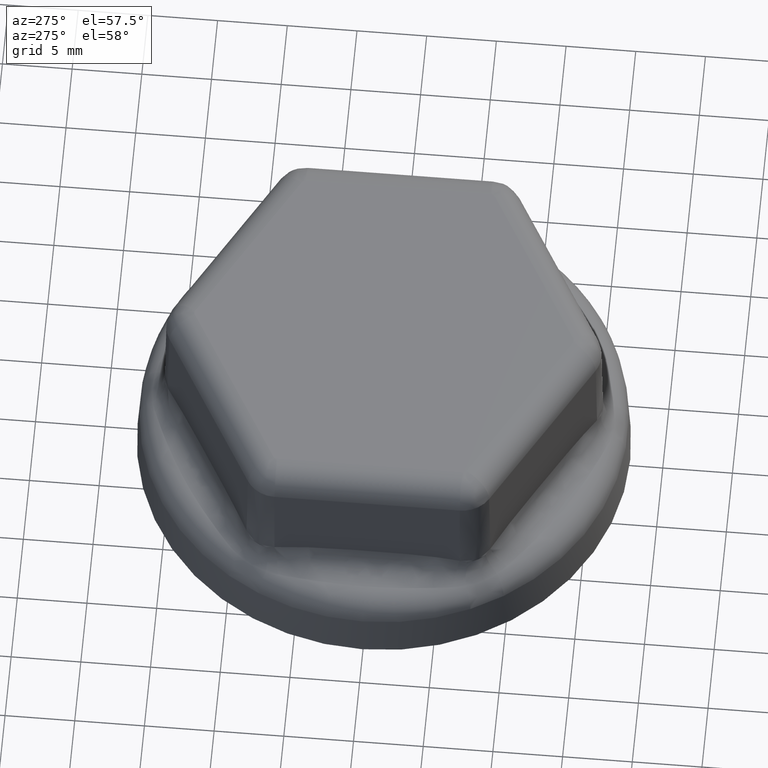
[diagram: clean part render]
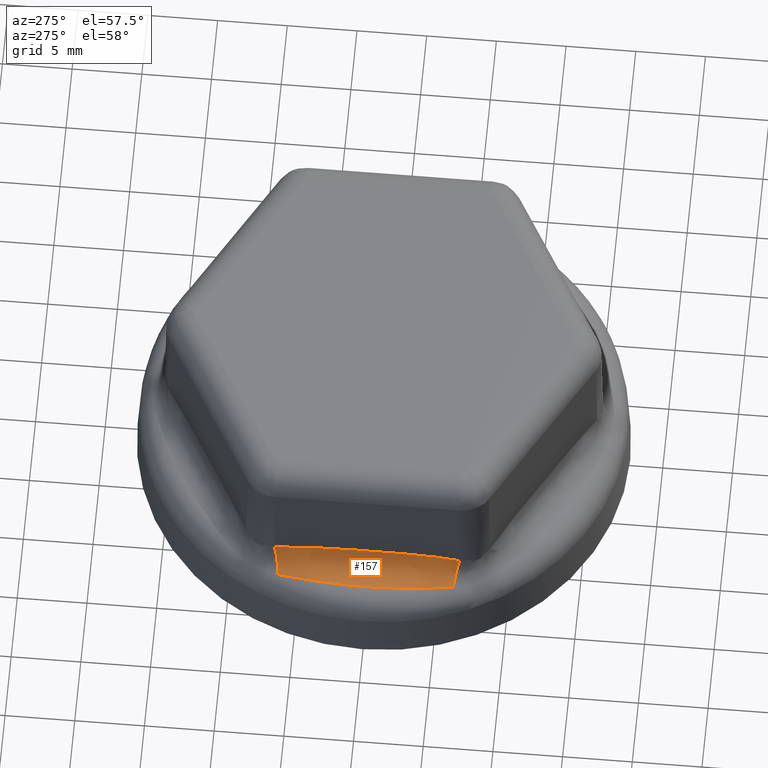
[diagram: same view with one face highlighted and labeled with its STEP entity id]
A machine part, auxiliary view. The second image highlights one B-rep face of the part: STEP entity #157.
In plain terms, the highlighted face is a freeform B-spline surface patch.
Its self-contained STEP definition (entity closure, byte-faithful):
#157 = ADVANCED_FACE( '', ( #350 ), #351, .F. );
#350 = FACE_OUTER_BOUND( '', #3549, .T. );
#351 = ( B_SPLINE_SURFACE( 3, 2, ( ( #3551, #3552, #3553 ), ( #3554, #3555, #3556 ), ( #3557, #3558, #3559 ), ( #3560, #3561, #3562 ), ( #3563, #3564, #3565 ), ( #3566, #3567, #3568 ), ( #3569, #3570, #3571 ), ( #3572, #3573, #3574 ), ( #3575, #3576, #3577 ), ( #3578, #3579, #3580 ), ( #3581, #3582, #3583 ), ( #3584, #3585, #3586 ), ( #3587, #3588, #3589 ), ( #3590, #3591, #3592 ), ( #3593, #3594, #3595 ), ( #3596, #3597, #3598 ), ( #3599, #3600, #3601 ), ( #3602, #3603, #3604 ), ( #3605, #3606, #3607 ), ( #3608, #3609, #3610 ), ( #3611, #3612, #3613 ), ( #3614, #3615, #3616 ), ( #3617, #3618, #3619 ), ( #3620, #3621, #3622 ), ( #3623, #3624, #3625 ), ( #3626, #3627, #3628 ), ( #3629, #3630, #3631 ), ( #3632, #3633, #3634 ), ( #3635, #3636, #3637 ), ( #3638, #3639, #3640 ), ( #3641, #3642, #3643 ), ( #3644, #3645, #3646 ), ( #3647, #3648, #3649 ), ( #3650, #3651, #3652 ), ( #3653, #3654, #3655 ), ( #3656, #3657, #3658 ) ), .UNSPECIFIED., .F., .F., .F. )B_SPLINE_SURFACE_WITH_KNOTS( ( 4, 2, 2, 2, 2, 2, 2, 2, 2, 2, 2, 2, 2, 2, 2, 2, 2, 4 ), ( 3, 3 ), ( -1.37813332794223E-011, 0.000831443280726697, 0.00166288657523473, 0.00249432986974276, 0.00332577316425079, 0.00415721645875882, 0.00498865975326685, 0.00582010304777488, 0.00665154634228291, 0.00748298963679094, 0.00789871128404495, 0.00831443293129897, 0.00914587622580700, 0.00997731952031503, 0.0108087628148231, 0.0116402061093311, 0.0124716494038391, 0.0133030926983471 ), ( 0.000000000000000, 1.00000000000000 ), .UNSPECIFIED. )RATIONAL_B_SPLINE_SURFACE( ( ( 1.00000000000000, 0.843691954398489, 1.00000000000000 ), ( 1.00000000000000, 0.837211556628137, 1.00000000000000 ), ( 1.00000000000000, 0.830867068833462, 1.00000000000000 ), ( 1.00000000000000, 0.818588439355101, 1.00000000000000 ), ( 1.00000000000000, 0.812654270164333, 1.00000000000000 ), ( 1.00000000000000, 0.801343099701643, 1.00000000000000 ), ( 1.00000000000000, 0.795966344957420, 1.00000000000000 ), ( 1.00000000000000, 0.785920784457785, 1.00000000000000 ), ( 1.00000000000000, 0.781252302085408, 1.00000000000000 ), ( 1.00000000000000, 0.772769031415455, 1.00000000000000 ), ( 1.00000000000000, 0.768954609714374, 1.00000000000000 ), ( 1.00000000000000, 0.762309661858771, 1.00000000000000 ), ( 1.00000000000000, 0.759479492766031, 1.00000000000000 ), ( 1.00000000000000, 0.754906625058275, 1.00000000000000 ), ( 1.00000000000000, 0.753164210286724, 1.00000000000000 ), ( 1.00000000000000, 0.750833929916859, 1.00000000000000 ), ( 1.00000000000000, 0.750246217012174, 1.00000000000000 ), ( 1.00000000000000, 0.750249161932287, 1.00000000000000 ), ( 1.00000000000000, 0.750839808116368, 1.00000000000000 ), ( 1.00000000000000, 0.752593318346970, 1.00000000000000 ), ( 1.00000000000000, 0.753322058915405, 1.00000000000000 ), ( 1.00000000000000, 0.755061262384746, 1.00000000000000 ), ( 1.00000000000000, 0.756071797194587, 1.00000000000000 ), ( 1.00000000000000, 0.759510829549152, 1.00000000000000 ), ( 1.00000000000000, 0.762347930420346, 1.00000000000000 ), ( 1.00000000000000, 0.769006506175016, 1.00000000000000 ), ( 1.00000000000000, 0.772827621118727, 1.00000000000000 ), ( 1.00000000000000, 0.781322027521687, 1.00000000000000 ), ( 1.00000000000000, 0.785994947788596, 1.00000000000000 ), ( 1.00000000000000, 0.796044811842830, 1.00000000000000 ), ( 1.00000000000000, 0.801421428080046, 1.00000000000000 ), ( 1.00000000000000, 0.812725261667539, 1.00000000000000 ), ( 1.00000000000000, 0.818652231052628, 1.00000000000000 ), ( 1.00000000000000, 0.830906840572936, 1.00000000000000 ), ( 1.00000000000000, 0.837234508911816, 1.00000000000000 ), ( 1.00000000000000, 0.843691954387996, 1.00000000000000 ) ) )BOUNDED_SURFACE(  )REPRESENTATION_ITEM( '' )GEOMETRIC_REPRESENTATION_ITEM(  )SURFACE(  ) );
#3549 = EDGE_LOOP( '', ( #5109, #5110, #5111, #5112 ) );
#3551 = CARTESIAN_POINT( '', ( -13.9379805355858, 6.63957206230193, 6.85309273665093 ) );
#3552 = CARTESIAN_POINT( '', ( -13.9597953413129, 6.40076367822916, 5.60332335356368 ) );
#3553 = CARTESIAN_POINT( '', ( -15.1215967731890, 6.29959675045910, 5.09399877476275 ) );
#3554 = CARTESIAN_POINT( '', ( -13.9370636802354, 6.36459783929689, 6.90561934449793 ) );
#3555 = CARTESIAN_POINT( '', ( -13.9595449815986, 6.14493108211604, 5.61766645208313 ) );
#3556 = CARTESIAN_POINT( '', ( -15.1648854509865, 6.05709885768308, 5.12026206428203 ) );
#3557 = CARTESIAN_POINT( '', ( -13.9362967645400, 6.08921268362416, 6.94955591525624 ) );
#3558 = CARTESIAN_POINT( '', ( -13.9594113887029, 5.88766573845938, 5.62531998385352 ) );
#3559 = CARTESIAN_POINT( '', ( -15.2068228724365, 5.81129930117798, 5.14223036439424 ) );
#3560 = CARTESIAN_POINT( '', ( -13.9349896199459, 5.53783486546261, 7.02444217890070 ) );
#3561 = CARTESIAN_POINT( '', ( -13.9593090320169, 5.37018854153418, 5.63118399447040 ) );
#3562 = CARTESIAN_POINT( '', ( -15.2871938525192, 5.31351554310261, 5.17967349555884 ) );
#3563 = CARTESIAN_POINT( '', ( -13.9344496470653, 5.26183877518607, 7.05537720451094 ) );
#3564 = CARTESIAN_POINT( '', ( -13.9593404595648, 5.10997374556990, 5.62938351145628 ) );
#3565 = CARTESIAN_POINT( '', ( -15.3256272196466, 5.06152791155838, 5.19514100896726 ) );
#3566 = CARTESIAN_POINT( '', ( -13.9335407668540, 4.70938402077671, 7.10744691694590 ) );
#3567 = CARTESIAN_POINT( '', ( -13.9595104367012, 4.58653570441096, 5.61964552783297 ) );
#3568 = CARTESIAN_POINT( '', ( -15.3982087007171, 4.55188246685682, 5.22117586463575 ) );
#3569 = CARTESIAN_POINT( '', ( -13.9331719830993, 4.43292502248497, 7.12857452410253 ) );
#3570 = CARTESIAN_POINT( '', ( -13.9596490555050, 4.32331023894752, 5.61170406190398 ) );
#3571 = CARTESIAN_POINT( '', ( -15.4323558729724, 4.29422434067691, 5.23173966871977 ) );
#3572 = CARTESIAN_POINT( '', ( -13.9325610813358, 3.87966451238818, 7.16357306269368 ) );
#3573 = CARTESIAN_POINT( '', ( -13.9599823072721, 3.79388759684289, 5.59261208091711 ) );
#3574 = CARTESIAN_POINT( '', ( -15.4956238760954, 3.77389433499304, 5.24923893755290 ) );
#3575 = CARTESIAN_POINT( '', ( -13.9323190165069, 3.60286285678026, 7.17744094745061 ) );
#3576 = CARTESIAN_POINT( '', ( -13.9601769365238, 3.52768856584628, 5.58146177856229 ) );
#3577 = CARTESIAN_POINT( '', ( -15.5247436294746, 3.51122263579012, 5.25617288035321 ) );
#3578 = CARTESIAN_POINT( '', ( -13.9319259372901, 3.04901333846105, 7.19996044070170 ) );
#3579 = CARTESIAN_POINT( '', ( -13.9605768821376, 2.99251538770000, 5.55854890971203 ) );
#3580 = CARTESIAN_POINT( '', ( -15.5772878569873, 2.98166049257618, 5.26743262659751 ) );
#3581 = CARTESIAN_POINT( '', ( -13.9317749393221, 2.77196543134889, 7.20861110849525 ) );
#3582 = CARTESIAN_POINT( '', ( -13.9607821489291, 2.72354025488568, 5.54678918309278 ) );
#3583 = CARTESIAN_POINT( '', ( -15.6007112628476, 2.71477067459435, 5.27175796083325 ) );
#3584 = CARTESIAN_POINT( '', ( -13.9315362340557, 2.21769847448825, 7.22228652404903 ) );
#3585 = CARTESIAN_POINT( '', ( -13.9611647238670, 2.18321602789170, 5.52487147957771 ) );
#3586 = CARTESIAN_POINT( '', ( -15.6412987950875, 2.17769356641437, 5.27859566831345 ) );
#3587 = CARTESIAN_POINT( '', ( -13.9314485252641, 1.94047942877776, 7.22731135735061 ) );
#3588 = CARTESIAN_POINT( '', ( -13.9613419602326, 1.91186735135320, 5.51471761501710 ) );
#3589 = CARTESIAN_POINT( '', ( -15.6584619996585, 1.90750728573273, 5.28110808521472 ) );
#3590 = CARTESIAN_POINT( '', ( -13.9313163372974, 1.38592444128721, 7.23488440088938 ) );
#3591 = CARTESIAN_POINT( '', ( -13.9616384263292, 1.36741219677473, 5.49773308367615 ) );
#3592 = CARTESIAN_POINT( '', ( -15.6861004747761, 1.36485994164747, 5.28489460677984 ) );
#3593 = CARTESIAN_POINT( '', ( -13.9312718506435, 1.10858851973080, 7.23743303958985 ) );
#3594 = CARTESIAN_POINT( '', ( -13.9617575874961, 1.09430778634424, 5.49090634504191 ) );
#3595 = CARTESIAN_POINT( '', ( -15.6965750888122, 1.09240017485343, 5.28616892628416 ) );
#3596 = CARTESIAN_POINT( '', ( -13.9312139222497, 0.553832728881073, 7.24075175504399 ) );
#3597 = CARTESIAN_POINT( '', ( -13.9619186601889, 0.547135524207695, 5.48167849659940 ) );
#3598 = CARTESIAN_POINT( '', ( -15.7105672094981, 0.546294916667218, 5.28782828390733 ) );
#3599 = CARTESIAN_POINT( '', ( -13.9312004745000, 0.276412875839324, 7.24152217610831 ) );
#3600 = CARTESIAN_POINT( '', ( -13.9619605301712, 0.273071088611115, 5.47927976695264 ) );
#3601 = CARTESIAN_POINT( '', ( -15.7140844088122, 0.272650881539664, 5.28821349449101 ) );
#3602 = CARTESIAN_POINT( '', ( -13.9312005438164, -0.278499745093166, 7.24151820497565 ) );
#3603 = CARTESIAN_POINT( '', ( -13.9619603224358, -0.275132727956328, 5.47929166809407 ) );
#3604 = CARTESIAN_POINT( '', ( -15.7140667654219, -0.274709348395655, 5.28821150892553 ) );
#3605 = CARTESIAN_POINT( '', ( -13.9312140597466, -0.555992509912927, 7.24074387785291 ) );
#3606 = CARTESIAN_POINT( '', ( -13.9619182446452, -0.549268191751736, 5.48170230309495 ) );
#3607 = CARTESIAN_POINT( '', ( -15.7105320004242, -0.548424068967767, 5.28782434531073 ) );
#3608 = CARTESIAN_POINT( '', ( -13.9312576632207, -0.972294742043303, 7.23824583649407 ) );
#3609 = CARTESIAN_POINT( '', ( -13.9617970531313, -0.959875928247612, 5.48864536029619 ) );
#3610 = CARTESIAN_POINT( '', ( -15.7000029539855, -0.958230137504867, 5.28657532471082 ) );
#3611 = CARTESIAN_POINT( '', ( -13.9312761502547, -1.11107284072013, 7.23718671502351 ) );
#3612 = CARTESIAN_POINT( '', ( -13.9617470797410, -1.09664647301072, 5.49150833390857 ) );
#3613 = CARTESIAN_POINT( '', ( -15.6956235008434, -1.09470478963325, 5.28604576390968 ) );
#3614 = CARTESIAN_POINT( '', ( -13.9313223154328, -1.38865389151241, 7.23454191374611 ) );
#3615 = CARTESIAN_POINT( '', ( -13.9616299860307, -1.36989350895974, 5.49821662806786 ) );
#3616 = CARTESIAN_POINT( '', ( -15.6851514429252, -1.36726835958525, 5.28472336334969 ) );
#3617 = CARTESIAN_POINT( '', ( -13.9313499962377, -1.52746380370554, 7.23295608149110 ) );
#3618 = CARTESIAN_POINT( '', ( -13.9615628625712, -1.50637671429122, 5.50206212848116 ) );
#3619 = CARTESIAN_POINT( '', ( -15.6790583745975, -1.50336400521756, 5.28393044713180 ) );
#3620 = CARTESIAN_POINT( '', ( -13.9314494772925, -1.94379557239822, 7.22725681568193 ) );
#3621 = CARTESIAN_POINT( '', ( -13.9613399770985, -1.91511712048992, 5.51483122868729 ) );
#3622 = CARTESIAN_POINT( '', ( -15.6582721601644, -1.91074430382624, 5.28108081438030 ) );
#3623 = CARTESIAN_POINT( '', ( -13.9315374797403, -2.22125920178930, 7.22221515882569 ) );
#3624 = CARTESIAN_POINT( '', ( -13.9611623889993, -2.18669701599726, 5.52500524407695 ) );
#3625 = CARTESIAN_POINT( '', ( -15.6410661778938, -2.18115789117179, 5.27855998570222 ) );
#3626 = CARTESIAN_POINT( '', ( -13.9317769343781, -2.77592049915865, 7.20849681180883 ) );
#3627 = CARTESIAN_POINT( '', ( -13.9607792944472, -2.72738586599613, 5.54695271623130 ) );
#3628 = CARTESIAN_POINT( '', ( -15.6003931341159, -2.71858886127029, 5.27170081248961 ) );
#3629 = CARTESIAN_POINT( '', ( -13.9319283903825, -3.05311815114895, 7.19981990312931 ) );
#3630 = CARTESIAN_POINT( '', ( -13.9605738622807, -2.99649438987338, 5.55872191720242 ) );
#3631 = CARTESIAN_POINT( '', ( -15.5769269932480, -2.98560517473804, 5.26736235781221 ) );
#3632 = CARTESIAN_POINT( '', ( -13.9323225129831, -3.60713112894575, 7.17724063446499 ) );
#3633 = CARTESIAN_POINT( '', ( -13.9601739108567, -3.53180010804350, 5.58163511890582 ) );
#3634 = CARTESIAN_POINT( '', ( -15.5243096957070, -3.51528355988952, 5.25607272385950 ) );
#3635 = CARTESIAN_POINT( '', ( -13.9325651667734, -3.88394650843051, 7.16333900812628 ) );
#3636 = CARTESIAN_POINT( '', ( -13.9599794446361, -3.79799831112999, 5.59277608124750 ) );
#3637 = CARTESIAN_POINT( '', ( -15.4951596202510, -3.77794496826024, 5.24912191027144 ) );
#3638 = CARTESIAN_POINT( '', ( -13.9331771860772, -4.43704613161244, 7.12827644569824 ) );
#3639 = CARTESIAN_POINT( '', ( -13.9596468609372, -4.32724037006294, 5.61182978858270 ) );
#3640 = CARTESIAN_POINT( '', ( -15.4318588042125, -4.29807629330100, 5.23159062951539 ) );
#3641 = CARTESIAN_POINT( '', ( -13.9335465042062, -4.71333057393014, 7.10711822425541 ) );
#3642 = CARTESIAN_POINT( '', ( -13.9595087520642, -4.59028615301143, 5.61974204062273 ) );
#3643 = CARTESIAN_POINT( '', ( -15.3977091591660, -4.55554604023268, 5.22101151829466 ) );
#3644 = CARTESIAN_POINT( '', ( -13.9344559153297, -5.26518362391036, 7.05501809588469 ) );
#3645 = CARTESIAN_POINT( '', ( -13.9593399070651, -5.11313158208012, 5.62941516414394 ) );
#3646 = CARTESIAN_POINT( '', ( -15.3251685649763, -5.06459043102778, 5.19496145464996 ) );
#3647 = CARTESIAN_POINT( '', ( -13.9349958949629, -5.54075270674731, 7.02408268341680 ) );
#3648 = CARTESIAN_POINT( '', ( -13.9593091096470, -5.37293359775057, 5.63117954703979 ) );
#3649 = CARTESIAN_POINT( '', ( -15.2867785675682, -5.31616547850401, 5.17949374782387 ) );
#3650 = CARTESIAN_POINT( '', ( -13.9363015189423, -6.09094495674711, 6.94928353573171 ) );
#3651 = CARTESIAN_POINT( '', ( -13.9594121782484, -5.88928483534311, 5.62527475082634 ) );
#3652 = CARTESIAN_POINT( '', ( -15.2065602534319, -5.81284735458686, 5.14209417462495 ) );
#3653 = CARTESIAN_POINT( '', ( -13.9370669258322, -6.36557122536859, 6.90543340438079 ) );
#3654 = CARTESIAN_POINT( '', ( -13.9595458679913, -6.14583684867132, 5.61761567063392 ) );
#3655 = CARTESIAN_POINT( '', ( -15.1647321666497, -6.05795753786878, 5.12016906649112 ) );
#3656 = CARTESIAN_POINT( '', ( -13.9379805355843, -6.63957206185669, 6.85309273673598 ) );
#3657 = CARTESIAN_POINT( '', ( -13.9597953413125, -6.40076367781491, 5.60332335358690 ) );
#3658 = CARTESIAN_POINT( '', ( -15.1215967732591, -6.29959675006644, 5.09399877480527 ) );
#5109 = ORIENTED_EDGE( '', *, *, #5486, .T. );
#5110 = ORIENTED_EDGE( '', *, *, #5484, .F. );
#5111 = ORIENTED_EDGE( '', *, *, #5480, .F. );
#5112 = ORIENTED_EDGE( '', *, *, #5487, .F. );
#5480 = EDGE_CURVE( '', #5513, #5870, #5871, .T. );
#5484 = EDGE_CURVE( '', #5870, #5876, #5877, .T. );
#5486 = EDGE_CURVE( '', #5709, #5876, #5879, .T. );
#5487 = EDGE_CURVE( '', #5709, #5513, #5880, .T. );
#5513 = VERTEX_POINT( '', #5985 );
#5709 = VERTEX_POINT( '', #6581 );
#5870 = VERTEX_POINT( '', #7674 );
#5871 = CIRCLE( '', #7675, 2.00000000000000 );
#5876 = VERTEX_POINT( '', #7693 );
#5877 = B_SPLINE_CURVE_WITH_KNOTS( '', 3, ( #7694, #7695, #7696, #7697, #7698, #7699, #7700, #7701, #7702, #7703, #7704, #7705, #7706, #7707, #7708, #7709, #7710, #7711, #7712, #7713, #7714, #7715, #7716, #7717, #7718, #7719, #7720, #7721, #7722, #7723, #7724, #7725, #7726, #7727, #7728, #7729 ), .UNSPECIFIED., .F., .F., ( 4, 1, 1, 1, 2, 2, 2, 2, 2, 2, 1, 2, 1, 1, 1, 2, 2, 2, 2, 1, 1, 1, 4 ), ( 8.67361737988404E-019, 0.000396585950711469, 0.000793171901422938, 0.00118975785213441, 0.00158634380284587, 0.00237951570426881, 0.00317268760569174, 0.00396585950711468, 0.00475903140853761, 0.00495732438389335, 0.00515561735924908, 0.00555220330996054, 0.00634537521138348, 0.00713854711280641, 0.00793171901422934, 0.00872489091565227, 0.00951806281707520, 0.0103112347184981, 0.0111044066199211, 0.0115009925706325, 0.0118975785213440, 0.0122941644720555, 0.0126907504227669 ), .UNSPECIFIED. );
#5879 = CIRCLE( '', #7736, 2.00000000000000 );
#5880 = B_SPLINE_CURVE_WITH_KNOTS( '', 3, ( #7737, #7738, #7739, #7740, #7741, #7742, #7743, #7744, #7745, #7746, #7747, #7748, #7749, #7750, #7751, #7752, #7753, #7754, #7755, #7756, #7757, #7758, #7759, #7760, #7761, #7762, #7763, #7764, #7765, #7766, #7767, #7768 ), .UNSPECIFIED., .F., .F., ( 4, 1, 1, 1, 2, 2, 2, 1, 1, 1, 1, 2, 2, 2, 1, 1, 2, 2, 1, 1, 1, 4 ), ( 0.000000000000000, 0.000415721646823348, 0.000831443293646696, 0.00124716494047004, 0.00166288658729339, 0.00249432988094009, 0.00332577317458678, 0.00415721646823348, 0.00498865976188018, 0.00582010305552688, 0.00665154634917357, 0.00748298964282027, 0.00789871128964362, 0.00831443293646697, 0.00914587623011366, 0.00997731952376036, 0.0108087628174071, 0.0116402061110538, 0.0120559277578771, 0.0124716494047005, 0.0128873710515238, 0.0133030926983471 ), .UNSPECIFIED. );
#5985 = CARTESIAN_POINT( '', ( -13.9379805356313, -6.63957206185669, 6.85309273404557 ) );
#6581 = CARTESIAN_POINT( '', ( -13.9379805355858, 6.63957206230193, 6.85309273665093 ) );
#7674 = CARTESIAN_POINT( '', ( -15.1215967732591, -6.29959675006644, 5.09399877480527 ) );
#7675 = AXIS2_PLACEMENT_3D( '', #8241, #8242, #8243 );
#7693 = CARTESIAN_POINT( '', ( -15.1215967731890, 6.29959675045910, 5.09399877476275 ) );
#7694 = CARTESIAN_POINT( '', ( -15.1215967732591, -6.29959675006644, 5.09399877480527 ) );
#7695 = CARTESIAN_POINT( '', ( -15.1447946555346, -6.16964504095384, 5.10807295649784 ) );
#7696 = CARTESIAN_POINT( '', ( -15.1901164373100, -5.90951492646291, 5.13356695409562 ) );
#7697 = CARTESIAN_POINT( '', ( -15.2546682620466, -5.51866638031118, 5.16514658996352 ) );
#7698 = CARTESIAN_POINT( '', ( -15.3155970558460, -5.12718397314621, 5.19113243454362 ) );
#7699 = CARTESIAN_POINT( '', ( -15.3536829093356, -4.86578265938426, 5.20531969653194 ) );
#7700 = CARTESIAN_POINT( '', ( -15.4088302208941, -4.47337616826760, 5.22462334866389 ) );
#7701 = CARTESIAN_POINT( '', ( -15.4429510503317, -4.21136614827544, 5.23487087451573 ) );
#7702 = CARTESIAN_POINT( '', ( -15.5055225523883, -3.68655217982073, 5.25169731807561 ) );
#7703 = CARTESIAN_POINT( '', ( -15.5339733910986, -3.42374807693714, 5.25827178134730 ) );
#7704 = CARTESIAN_POINT( '', ( -15.5848881213413, -2.89735397449297, 5.26889222000291 ) );
#7705 = CARTESIAN_POINT( '', ( -15.6073521282681, -2.63376389113834, 5.27293570377006 ) );
#7706 = CARTESIAN_POINT( '', ( -15.6460370636324, -2.10580037203608, 5.27931458690585 ) );
#7707 = CARTESIAN_POINT( '', ( -15.6622580676499, -1.84142689111087, 5.28164860351850 ) );
#7708 = CARTESIAN_POINT( '', ( -15.6785084563979, -1.51046974799683, 5.28384606653873 ) );
#7709 = CARTESIAN_POINT( '', ( -15.6815577956164, -1.44424396121989, 5.28424901013683 ) );
#7710 = CARTESIAN_POINT( '', ( -15.6872496802045, -1.31178891788113, 5.28498782309784 ) );
#7711 = CARTESIAN_POINT( '', ( -15.6951753247904, -1.11315342891943, 5.28599495269769 ) );
#7712 = CARTESIAN_POINT( '', ( -15.7012602476820, -0.914658799646036, 5.28672603640205 ) );
#7713 = CARTESIAN_POINT( '', ( -15.7109697099799, -0.517856508970130, 5.28787230040049 ) );
#7714 = CARTESIAN_POINT( '', ( -15.7173511470983, 0.0107147149554492, 5.28857193299424 ) );
#7715 = CARTESIAN_POINT( '', ( -15.7072597181337, 0.802086351652827, 5.28746356850521 ) );
#7716 = CARTESIAN_POINT( '', ( -15.6776997337784, 1.59197914025532, 5.28387955757818 ) );
#7717 = CARTESIAN_POINT( '', ( -15.6452535520874, 2.11758993386854, 5.27919442624312 ) );
#7718 = CARTESIAN_POINT( '', ( -15.6066132389255, 2.64270756057227, 5.27280446778558 ) );
#7719 = CARTESIAN_POINT( '', ( -15.5841959282493, 2.90501981995049, 5.26875852898464 ) );
#7720 = CARTESIAN_POINT( '', ( -15.5334005817213, 3.42914790116884, 5.25814133246282 ) );
#7721 = CARTESIAN_POINT( '', ( -15.5050224205531, 3.69096377745371, 5.25157264829883 ) );
#7722 = CARTESIAN_POINT( '', ( -15.4425998227288, 4.21409228841104, 5.23476646570103 ) );
#7723 = CARTESIAN_POINT( '', ( -15.4085552150195, 4.47540502350410, 5.22453353692831 ) );
#7724 = CARTESIAN_POINT( '', ( -15.3535085134787, 4.86698727343517, 5.20525539849433 ) );
#7725 = CARTESIAN_POINT( '', ( -15.3154851695231, 5.12791304823300, 5.19108626253046 ) );
#7726 = CARTESIAN_POINT( '', ( -15.2546284378911, 5.51890718407096, 5.16512715079056 ) );
#7727 = CARTESIAN_POINT( '', ( -15.1901190573748, 5.90949699907411, 5.13356770379053 ) );
#7728 = CARTESIAN_POINT( '', ( -15.1448005761115, 6.16961187461009, 5.10807654852067 ) );
#7729 = CARTESIAN_POINT( '', ( -15.1215967731890, 6.29959675045910, 5.09399877476279 ) );
#7736 = AXIS2_PLACEMENT_3D( '', #8247, #8248, #8249 );
#7737 = CARTESIAN_POINT( '', ( -13.9379805355858, 6.63957206230193, 6.85309273665093 ) );
#7738 = CARTESIAN_POINT( '', ( -13.9375221033508, 6.50208358862687, 6.87935630180224 ) );
#7739 = CARTESIAN_POINT( '', ( -13.9366805488425, 6.22690299758944, 6.92756892729667 ) );
#7740 = CARTESIAN_POINT( '', ( -13.9356146850008, 5.81360084729315, 6.98863222588844 ) );
#7741 = CARTESIAN_POINT( '', ( -13.9347198426653, 5.39983624223802, 7.03989770895740 ) );
#7742 = CARTESIAN_POINT( '', ( -13.9342224269852, 5.12372507444163, 7.06839463418084 ) );
#7743 = CARTESIAN_POINT( '', ( -13.9335407668492, 4.70938400900506, 7.10744691722185 ) );
#7744 = CARTESIAN_POINT( '', ( -13.9331719830753, 4.43292501105273, 7.12857452547753 ) );
#7745 = CARTESIAN_POINT( '', ( -13.9325610813351, 3.87966450146758, 7.16357306273269 ) );
#7746 = CARTESIAN_POINT( '', ( -13.9323190164906, 3.60286284618944, 7.17744094838496 ) );
#7747 = CARTESIAN_POINT( '', ( -13.9319259372917, 3.04901332839651, 7.19996044060720 ) );
#7748 = CARTESIAN_POINT( '', ( -13.9316239428587, 2.49491751068255, 7.21726169008603 ) );
#7749 = CARTESIAN_POINT( '', ( -13.9313608239593, 1.66326035419970, 7.23233576174136 ) );
#7750 = CARTESIAN_POINT( '', ( -13.9312273700026, 0.831252574153630, 7.23998133379820 ) );
#7751 = CARTESIAN_POINT( '', ( -13.9311870278842, -0.00100698716666418, 7.24229253221141 ) );
#7752 = CARTESIAN_POINT( '', ( -13.9312140597490, -0.555992516243008, 7.24074387771449 ) );
#7753 = CARTESIAN_POINT( '', ( -13.9312576632205, -0.972294747934893, 7.23824583650893 ) );
#7754 = CARTESIAN_POINT( '', ( -13.9312761502571, -1.11107284647494, 7.23718671489102 ) );
#7755 = CARTESIAN_POINT( '', ( -13.9313223154323, -1.38865389697245, 7.23454191377175 ) );
#7756 = CARTESIAN_POINT( '', ( -13.9313499962408, -1.52746380901730, 7.23295608131462 ) );
#7757 = CARTESIAN_POINT( '', ( -13.9314494772900, -1.94379557730145, 7.22725681582232 ) );
#7758 = CARTESIAN_POINT( '', ( -13.9316254783565, -2.49872285155813, 7.21717372147733 ) );
#7759 = CARTESIAN_POINT( '', ( -13.9320798591704, -3.33031575300841, 7.19114226208117 ) );
#7760 = CARTESIAN_POINT( '', ( -13.9325651667858, -3.88394651125694, 7.16333900741974 ) );
#7761 = CARTESIAN_POINT( '', ( -13.9331771860705, -4.43704613394286, 7.12827644607787 ) );
#7762 = CARTESIAN_POINT( '', ( -13.9335465042210, -4.71333057588295, 7.10711822340839 ) );
#7763 = CARTESIAN_POINT( '', ( -13.9342285625457, -5.12722036301151, 7.06804312815800 ) );
#7764 = CARTESIAN_POINT( '', ( -13.9347261087921, -5.40296731300481, 7.03953872279104 ) );
#7765 = CARTESIAN_POINT( '', ( -13.9356204045314, -5.81596746748052, 6.98830455419949 ) );
#7766 = CARTESIAN_POINT( '', ( -13.9366845407222, -6.22825570407076, 6.92734023265677 ) );
#7767 = CARTESIAN_POINT( '', ( -13.9375237272262, -6.50257060529372, 6.87926327004283 ) );
#7768 = CARTESIAN_POINT( '', ( -13.9379805355843, -6.63957206185669, 6.85309273673598 ) );
#8241 = CARTESIAN_POINT( '', ( -15.9376759258971, -6.63957206185669, 6.88799754961055 ) );
#8242 = DIRECTION( '', ( 0.00327509538843381, 0.982234301681296, 0.187630089140451 ) );
#8243 = DIRECTION( '', ( 9.09021577020722E-020, -0.187631095432150, 0.982239569568917 ) );
#8247 = CARTESIAN_POINT( '', ( -15.9376759259675, 6.63957207603654, 6.88799754710120 ) );
#8248 = DIRECTION( '', ( -0.00327508829514971, 0.982234300859759, -0.187630093564969 ) );
#8249 = DIRECTION( '', ( 0.000000000000000, 0.187631099852333, 0.982239568724557 ) );